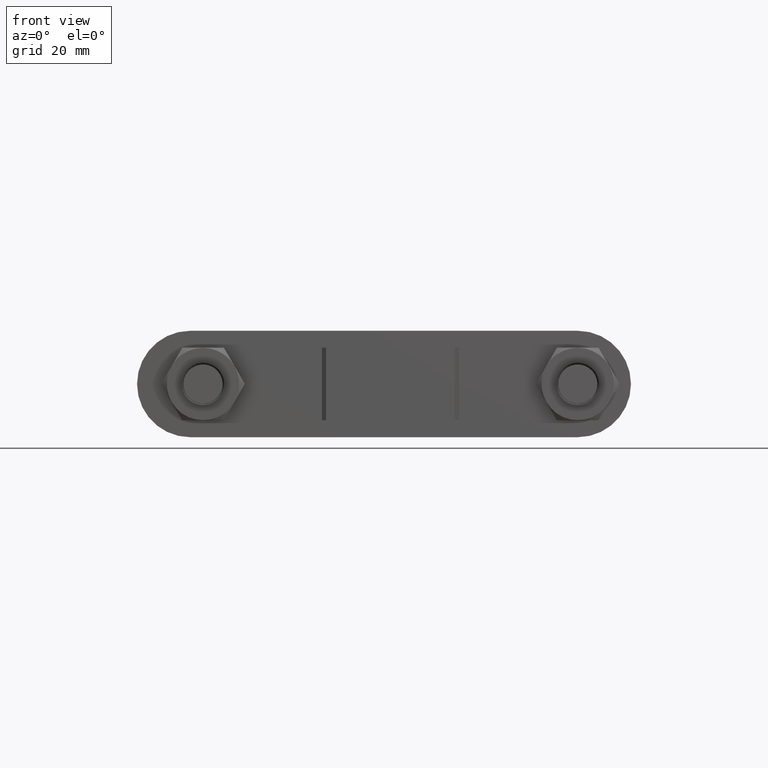
[diagram: clean part render]
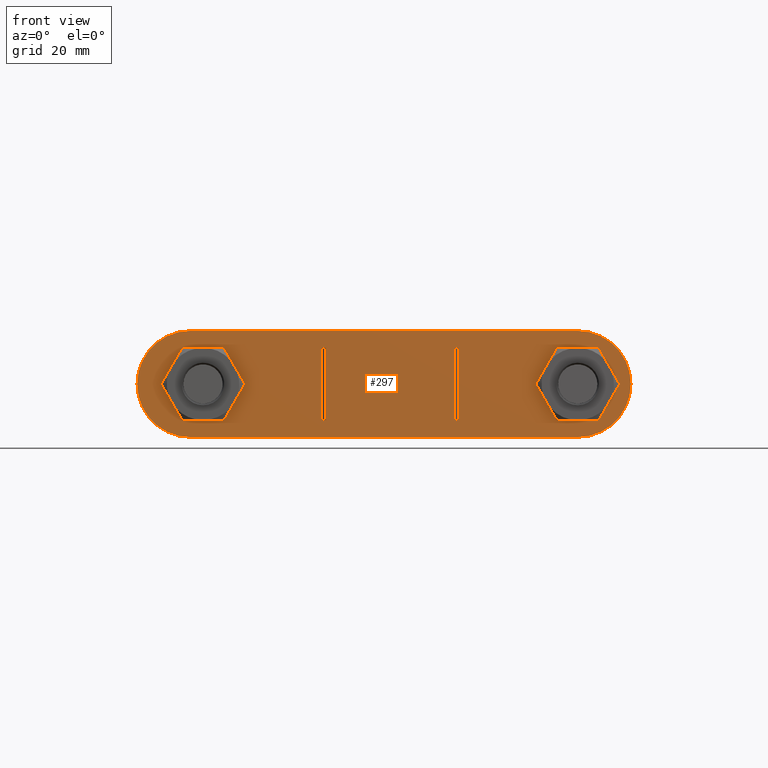
[diagram: same view with one face highlighted and labeled with its STEP entity id]
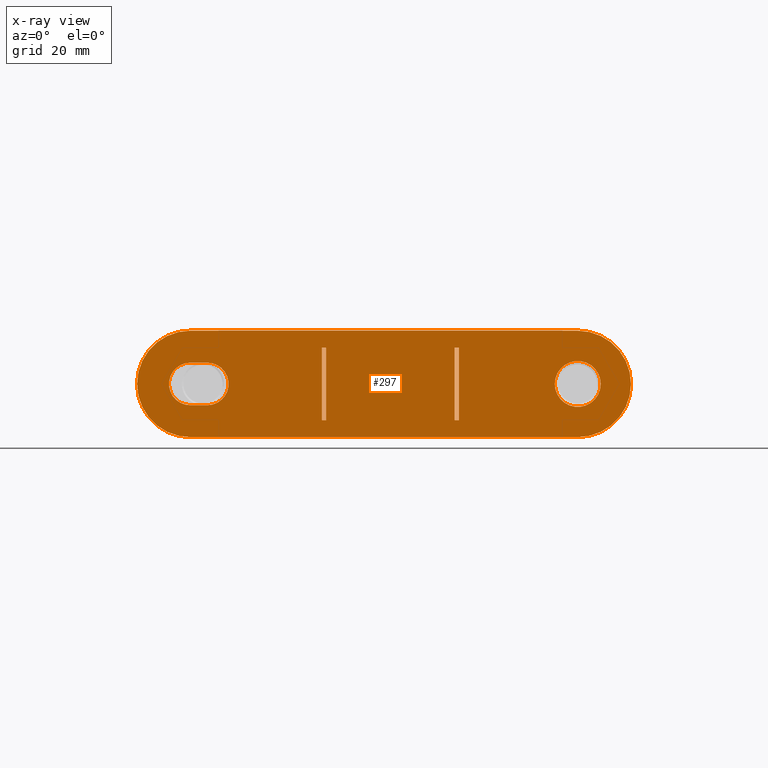
[diagram: x-ray of the same camera — body ghosted, the highlighted face saturated]
A machine part, front view. The second image highlights one B-rep face of the part: STEP entity #297.
The next image is the same camera in x-ray: the body ghosted, the highlighted face saturated — about 0% of this face is hidden behind the body in this view.
In plain terms, the highlighted planar face has unit normal (-0, 1, -0).
Its self-contained STEP definition (entity closure, byte-faithful):
#297 = ADVANCED_FACE( '', ( #451, #452, #453, #454, #455 ), #456, .F. );
#451 = FACE_BOUND( '', #1533, .T. );
#452 = FACE_OUTER_BOUND( '', #1534, .T. );
#453 = FACE_BOUND( '', #1535, .T. );
#454 = FACE_BOUND( '', #1536, .T. );
#455 = FACE_BOUND( '', #1537, .T. );
#456 = PLANE( '', #1538 );
#1533 = EDGE_LOOP( '', ( #1912, #1913, #1914, #1915 ) );
#1534 = EDGE_LOOP( '', ( #1916, #1917, #1918, #1919, #1920, #1921 ) );
#1535 = EDGE_LOOP( '', ( #1922 ) );
#1536 = EDGE_LOOP( '', ( #1923, #1924, #1925, #1926 ) );
#1537 = EDGE_LOOP( '', ( #1927, #1928, #1929, #1930 ) );
#1538 = AXIS2_PLACEMENT_3D( '', #1931, #1932, #1933 );
#1912 = ORIENTED_EDGE( '', *, *, #2593, .F. );
#1913 = ORIENTED_EDGE( '', *, *, #2594, .T. );
#1914 = ORIENTED_EDGE( '', *, *, #2595, .T. );
#1915 = ORIENTED_EDGE( '', *, *, #2596, .F. );
#1916 = ORIENTED_EDGE( '', *, *, #2597, .F. );
#1917 = ORIENTED_EDGE( '', *, *, #2598, .F. );
#1918 = ORIENTED_EDGE( '', *, *, #2599, .F. );
#1919 = ORIENTED_EDGE( '', *, *, #2600, .F. );
#1920 = ORIENTED_EDGE( '', *, *, #2601, .F. );
#1921 = ORIENTED_EDGE( '', *, *, #2602, .F. );
#1922 = ORIENTED_EDGE( '', *, *, #2603, .T. );
#1923 = ORIENTED_EDGE( '', *, *, #2604, .F. );
#1924 = ORIENTED_EDGE( '', *, *, #2605, .F. );
#1925 = ORIENTED_EDGE( '', *, *, #2606, .F. );
#1926 = ORIENTED_EDGE( '', *, *, #2607, .F. );
#1927 = ORIENTED_EDGE( '', *, *, #2608, .T. );
#1928 = ORIENTED_EDGE( '', *, *, #2609, .T. );
#1929 = ORIENTED_EDGE( '', *, *, #2610, .F. );
#1930 = ORIENTED_EDGE( '', *, *, #2611, .F. );
#1931 = CARTESIAN_POINT( '', ( -47.0000000000000, 35.0000000000000, 1.16510696489133E-011 ) );
#1932 = DIRECTION( '', ( -4.78873666697753E-017, 1.00000000000000, -1.48458090479487E-015 ) );
#1933 = DIRECTION( '', ( 2.47579734491594E-013, 1.48458090479488E-015, 1.00000000000000 ) );
#2593 = EDGE_CURVE( '', #2863, #2864, #2865, .T. );
#2594 = EDGE_CURVE( '', #2863, #2866, #2867, .T. );
#2595 = EDGE_CURVE( '', #2866, #2868, #2869, .T. );
#2596 = EDGE_CURVE( '', #2864, #2868, #2870, .T. );
#2597 = EDGE_CURVE( '', #2871, #2872, #2873, .T. );
#2598 = EDGE_CURVE( '', #2874, #2871, #2875, .T. );
#2599 = EDGE_CURVE( '', #2876, #2874, #2877, .T. );
#2600 = EDGE_CURVE( '', #2878, #2876, #2879, .T. );
#2601 = EDGE_CURVE( '', #2880, #2878, #2881, .T. );
#2602 = EDGE_CURVE( '', #2872, #2880, #2882, .T. );
#2603 = EDGE_CURVE( '', #2883, #2883, #2884, .T. );
#2604 = EDGE_CURVE( '', #2885, #2886, #2887, .T. );
#2605 = EDGE_CURVE( '', #2888, #2885, #2889, .T. );
#2606 = EDGE_CURVE( '', #2890, #2888, #2891, .T. );
#2607 = EDGE_CURVE( '', #2886, #2890, #2892, .T. );
#2608 = EDGE_CURVE( '', #2893, #2894, #2895, .T. );
#2609 = EDGE_CURVE( '', #2894, #2896, #2897, .T. );
#2610 = EDGE_CURVE( '', #2898, #2896, #2899, .T. );
#2611 = EDGE_CURVE( '', #2893, #2898, #2900, .T. );
#2863 = VERTEX_POINT( '', #3520 );
#2864 = VERTEX_POINT( '', #3521 );
#2865 = LINE( '', #3522, #3523 );
#2866 = VERTEX_POINT( '', #3524 );
#2867 = LINE( '', #3525, #3526 );
#2868 = VERTEX_POINT( '', #3527 );
#2869 = LINE( '', #3528, #3529 );
#2870 = LINE( '', #3530, #3531 );
#2871 = VERTEX_POINT( '', #3532 );
#2872 = VERTEX_POINT( '', #3533 );
#2873 = CIRCLE( '', #3534, 12.5000000000000 );
#2874 = VERTEX_POINT( '', #3535 );
#2875 = CIRCLE( '', #3536, 12.5000000000000 );
#2876 = VERTEX_POINT( '', #3537 );
#2877 = LINE( '', #3538, #3539 );
#2878 = VERTEX_POINT( '', #3540 );
#2879 = CIRCLE( '', #3541, 12.5000000000000 );
#2880 = VERTEX_POINT( '', #3542 );
#2881 = CIRCLE( '', #3543, 12.5000000000000 );
#2882 = LINE( '', #3544, #3545 );
#2883 = VERTEX_POINT( '', #3546 );
#2884 = CIRCLE( '', #3547, 5.40000000000000 );
#2885 = VERTEX_POINT( '', #3548 );
#2886 = VERTEX_POINT( '', #3549 );
#2887 = CIRCLE( '', #3550, 5.00000000000000 );
#2888 = VERTEX_POINT( '', #3551 );
#2889 = LINE( '', #3552, #3553 );
#2890 = VERTEX_POINT( '', #3554 );
#2891 = CIRCLE( '', #3555, 5.00000000000000 );
#2892 = LINE( '', #3556, #3557 );
#2893 = VERTEX_POINT( '', #3558 );
#2894 = VERTEX_POINT( '', #3559 );
#2895 = LINE( '', #3560, #3561 );
#2896 = VERTEX_POINT( '', #3562 );
#2897 = LINE( '', #3563, #3564 );
#2898 = VERTEX_POINT( '', #3565 );
#2899 = LINE( '', #3566, #3567 );
#2900 = LINE( '', #3568, #3569 );
#3520 = CARTESIAN_POINT( '', ( -16.1000000000021, 35.0000000000000, -8.49999999999600 ) );
#3521 = CARTESIAN_POINT( '', ( -15.1000000000021, 35.0000000000000, -8.49999999999625 ) );
#3522 = CARTESIAN_POINT( '', ( -16.1000000000021, 35.0000000000000, -8.49999999999600 ) );
#3523 = VECTOR( '', #4150, 1000.00000000000 );
#3524 = CARTESIAN_POINT( '', ( -16.0999999999979, 35.0000000000000, 8.50000000000400 ) );
#3525 = CARTESIAN_POINT( '', ( -16.1000000000021, 35.0000000000000, -8.49999999999600 ) );
#3526 = VECTOR( '', #4151, 1000.00000000000 );
#3527 = CARTESIAN_POINT( '', ( -15.0999999999979, 35.0000000000000, 8.50000000000375 ) );
#3528 = CARTESIAN_POINT( '', ( -16.0999999999979, 35.0000000000000, 8.50000000000400 ) );
#3529 = VECTOR( '', #4152, 1000.00000000000 );
#3530 = CARTESIAN_POINT( '', ( -15.1000000000021, 35.0000000000000, -8.49999999999625 ) );
#3531 = VECTOR( '', #4153, 1000.00000000000 );
#3532 = CARTESIAN_POINT( '', ( -59.5000000000000, 35.0000000000000, 1.47423468831063E-011 ) );
#3533 = CARTESIAN_POINT( '', ( -46.9999999999969, 35.0000000000000, 12.5000000000116 ) );
#3534 = AXIS2_PLACEMENT_3D( '', #4154, #4155, #4156 );
#3535 = CARTESIAN_POINT( '', ( -47.0000000000031, 35.0000000000000, -12.4999999999883 ) );
#3536 = AXIS2_PLACEMENT_3D( '', #4157, #4158, #4159 );
#3537 = CARTESIAN_POINT( '', ( 43.9999999999970, 35.0000000000000, -12.5000000000109 ) );
#3538 = CARTESIAN_POINT( '', ( 43.9999999999970, 35.0000000000000, -12.5000000000109 ) );
#3539 = VECTOR( '', #4160, 1000.00000000000 );
#3540 = CARTESIAN_POINT( '', ( 56.5000000000000, 35.0000000000000, -1.39734328709668E-011 ) );
#3541 = AXIS2_PLACEMENT_3D( '', #4161, #4162, #4163 );
#3542 = CARTESIAN_POINT( '', ( 44.0000000000031, 35.0000000000000, 12.4999999999891 ) );
#3543 = AXIS2_PLACEMENT_3D( '', #4164, #4165, #4166 );
#3544 = CARTESIAN_POINT( '', ( -46.9999999999969, 35.0000000000000, 12.5000000000116 ) );
#3545 = VECTOR( '', #4167, 1000.00000000000 );
#3546 = CARTESIAN_POINT( '', ( 49.4000000000000, 35.0000000000000, -1.22138820326004E-011 ) );
#3547 = AXIS2_PLACEMENT_3D( '', #4168, #4169, #4170 );
#3548 = CARTESIAN_POINT( '', ( -46.9999999999988, 34.9999984999318, 5.00000000001165 ) );
#3549 = CARTESIAN_POINT( '', ( -47.0000000000012, 34.9999984999318, -4.99999999998835 ) );
#3550 = AXIS2_PLACEMENT_3D( '', #4171, #4172, #4173 );
#3551 = CARTESIAN_POINT( '', ( -42.9999999999988, 34.9999984999318, 5.00000000001066 ) );
#3552 = CARTESIAN_POINT( '', ( -42.9999999999988, 34.9999984999318, 5.00000000001066 ) );
#3553 = VECTOR( '', #4174, 1000.00000000000 );
#3554 = CARTESIAN_POINT( '', ( -43.0000000000012, 34.9999984999318, -4.99999999998934 ) );
#3555 = AXIS2_PLACEMENT_3D( '', #4175, #4176, #4177 );
#3556 = CARTESIAN_POINT( '', ( -47.0000000000012, 34.9999984999318, -4.99999999998835 ) );
#3557 = VECTOR( '', #4178, 1000.00000000000 );
#3558 = CARTESIAN_POINT( '', ( 16.0999999999979, 35.0000000000000, -8.50000000000398 ) );
#3559 = CARTESIAN_POINT( '', ( 15.0999999999979, 35.0000000000000, -8.50000000000373 ) );
#3560 = CARTESIAN_POINT( '', ( 16.0999999999979, 35.0000000000000, -8.50000000000398 ) );
#3561 = VECTOR( '', #4179, 1000.00000000000 );
#3562 = CARTESIAN_POINT( '', ( 15.1000000000021, 35.0000000000000, 8.49999999999628 ) );
#3563 = CARTESIAN_POINT( '', ( 15.0999999999979, 35.0000000000000, -8.50000000000373 ) );
#3564 = VECTOR( '', #4180, 1000.00000000000 );
#3565 = CARTESIAN_POINT( '', ( 16.1000000000021, 35.0000000000000, 8.49999999999603 ) );
#3566 = CARTESIAN_POINT( '', ( 16.1000000000021, 35.0000000000000, 8.49999999999603 ) );
#3567 = VECTOR( '', #4181, 1000.00000000000 );
#3568 = CARTESIAN_POINT( '', ( 16.0999999999979, 35.0000000000000, -8.50000000000398 ) );
#3569 = VECTOR( '', #4182, 1000.00000000000 );
#4150 = DIRECTION( '', ( 1.00000000000000, 4.78873666694077E-017, -2.47579734491594E-013 ) );
#4151 = DIRECTION( '', ( 2.47699483305936E-013, 1.74138306587251E-015, 1.00000000000000 ) );
#4152 = DIRECTION( '', ( 1.00000000000000, 4.78873666694077E-017, -2.47579734491594E-013 ) );
#4153 = DIRECTION( '', ( 2.47699483305936E-013, 1.74138306587251E-015, 1.00000000000000 ) );
#4154 = CARTESIAN_POINT( '', ( -47.0000000000000, 35.0000000000000, 1.16510696489133E-011 ) );
#4155 = DIRECTION( '', ( -4.78873666697753E-017, 1.00000000000000, -1.48458090479487E-015 ) );
#4156 = DIRECTION( '', ( -1.00000000000000, -4.78873666694079E-017, 2.47440956613516E-013 ) );
#4157 = CARTESIAN_POINT( '', ( -47.0000000000000, 35.0000000000000, 1.16545390958652E-011 ) );
#4158 = DIRECTION( '', ( -4.78873666697753E-017, 1.00000000000000, -1.48458090479487E-015 ) );
#4159 = DIRECTION( '', ( -2.47024622979282E-013, -1.48458090479488E-015, -1.00000000000000 ) );
#4160 = DIRECTION( '', ( -1.00000000000000, -4.78873666694077E-017, 2.47579734491594E-013 ) );
#4161 = CARTESIAN_POINT( '', ( 44.0000000000000, 35.0000000000000, -1.08752167428699E-011 ) );
#4162 = DIRECTION( '', ( -4.78873666697753E-017, 1.00000000000000, -1.48458090479487E-015 ) );
#4163 = DIRECTION( '', ( 1.00000000000000, 4.78873666694079E-017, -2.47440956613516E-013 ) );
#4164 = CARTESIAN_POINT( '', ( 44.0000000000000, 35.0000000000000, -1.08786861898218E-011 ) );
#4165 = DIRECTION( '', ( -4.78873666697753E-017, 1.00000000000000, -1.48458090479487E-015 ) );
#4166 = DIRECTION( '', ( 2.47579734491594E-013, 1.48458090479488E-015, 1.00000000000000 ) );
#4167 = DIRECTION( '', ( 1.00000000000000, 4.78873666694077E-017, -2.47579734491594E-013 ) );
#4168 = CARTESIAN_POINT( '', ( 44.0000000000000, 35.0000000000000, -1.08769514663458E-011 ) );
#4169 = DIRECTION( '', ( -4.78873666697753E-017, 1.00000000000000, -1.48458090479487E-015 ) );
#4170 = DIRECTION( '', ( 1.00000000000000, 4.78873666694077E-017, -2.47579734491594E-013 ) );
#4171 = CARTESIAN_POINT( '', ( -47.0000000000000, 34.9999984999318, 1.16528043746162E-011 ) );
#4172 = DIRECTION( '', ( 4.78873666697753E-017, -1.00000000000000, 1.48458090479487E-015 ) );
#4173 = DIRECTION( '', ( 2.47579734491594E-013, 1.48458090479488E-015, 1.00000000000000 ) );
#4174 = DIRECTION( '', ( -1.00000000000000, -4.78873666694077E-017, 2.47579734491594E-013 ) );
#4175 = CARTESIAN_POINT( '', ( -43.0000000000000, 34.9999984999318, 1.06624854366499E-011 ) );
#4176 = DIRECTION( '', ( 4.78873666697753E-017, -1.00000000000000, 1.48458090479487E-015 ) );
#4177 = DIRECTION( '', ( -2.47579734491594E-013, -1.48458090479488E-015, -1.00000000000000 ) );
#4178 = DIRECTION( '', ( 1.00000000000000, 4.78873666694077E-017, -2.47579734491594E-013 ) );
#4179 = DIRECTION( '', ( -1.00000000000000, 7.45732687128300E-017, 2.47579734491594E-013 ) );
#4180 = DIRECTION( '', ( 2.47459985677253E-013, 1.74138306587251E-015, 1.00000000000000 ) );
#4181 = DIRECTION( '', ( -1.00000000000000, 7.45732687128300E-017, 2.47579734491594E-013 ) );
#4182 = DIRECTION( '', ( 2.47459985677253E-013, 1.74138306587251E-015, 1.00000000000000 ) );